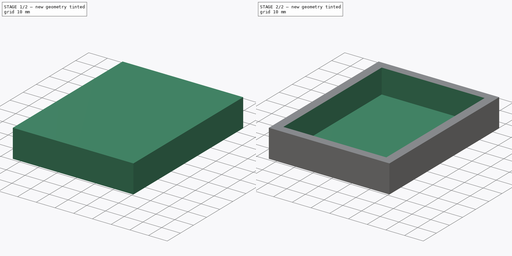
[diagram: build sequence overview — one tinted view per stage of 2, left to right]
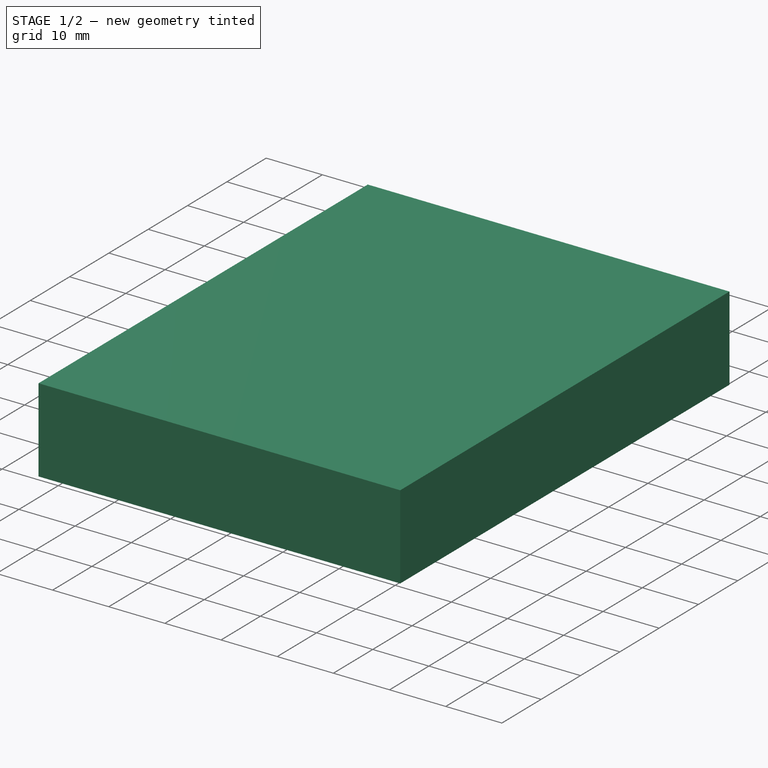
[diagram: stage 1 of 2 — iso view after this stage's code; geometry added in this stage tinted green]
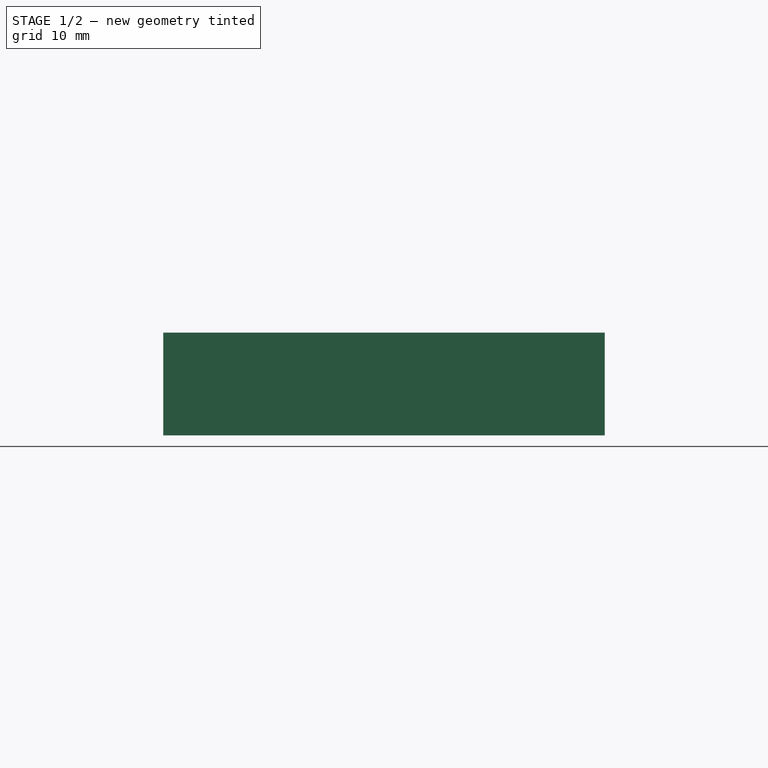
[diagram: stage 1 of 2 — front view after this stage's code; geometry added in this stage tinted green]
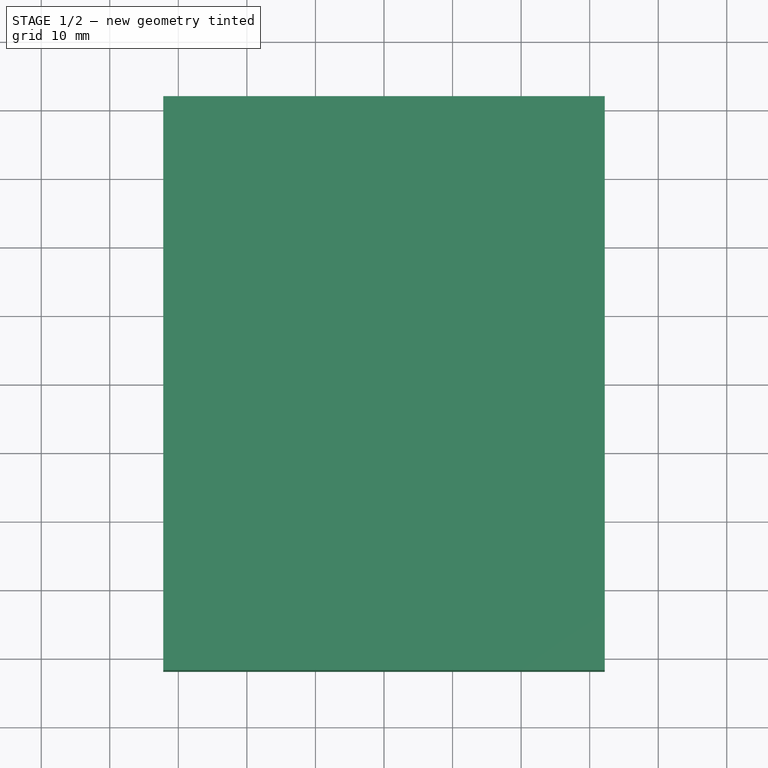
[diagram: stage 1 of 2 — top view after this stage's code; geometry added in this stage tinted green]
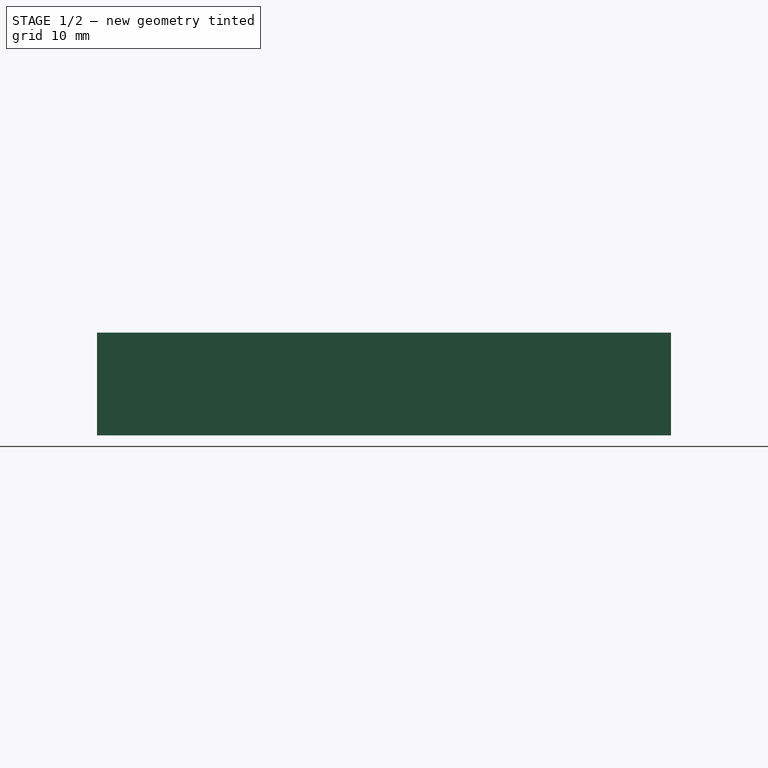
[diagram: stage 1 of 2 — right view after this stage's code; geometry added in this stage tinted green]
FCSTD DOCUMENT  (FreeCAD 1.0R39109 (Git))
Label: winding_dummy
License: All rights reserved
LicenseURL: https://en.wikipedia.org/wiki/All_rights_reserved
objects: Sketcher::SketchObject×3, PartDesign::Pad×1, PartDesign::Pocket×1, PartDesign::Body×1
note: 13 computed .brp shape members not serialized (recipe doc carries the construction recipe); baked Part::Feature solids carry a one-line shape summary decoded from their .brp

FEATURE [Sketcher::SketchObject] Sketch
  ArcFitTolerance = 1e-06
  AttachmentSupport = -> [XY_Plane]
  FullyConstrained = true
  MakeInternals = false
  MapMode = 5
  sketch-geometry (4):
    g0: LineSegment StartX=-32.2 StartY=41.865 StartZ=0 EndX=-32.2 EndY=-41.865 EndZ=0
    g1: LineSegment StartX=-32.2 StartY=-41.865 StartZ=0 EndX=32.2 EndY=-41.865 EndZ=0
    g2: LineSegment StartX=32.2 StartY=-41.865 StartZ=0 EndX=32.2 EndY=41.865 EndZ=0
    g3: LineSegment StartX=32.2 StartY=41.865 StartZ=0 EndX=-32.2 EndY=41.865 EndZ=0
  constraints (11):
    c: Coincident(g0,g1)
    c: Coincident(g1,g2)
    c: Coincident(g2,g3)
    c: Coincident(g3,g0)
    c: Vertical(g0)
    c: Vertical(g2)
    c: Horizontal(g1)
    c: Horizontal(g3)
    c: Distance(g0,g2) = 64.4
    c: Distance(g1,g3) = 83.73
    c: Symmetric(g0,g1,g-1)
FEATURE [PartDesign::Pad] Pad
  Direction = (0,0,1)
  Length = 15
  Length2 = 10
  Profile = -> Sketch
  ReferenceAxis = -> Sketch [N_Axis]
  Refine = true
  Suppressed = false
  Type = 0
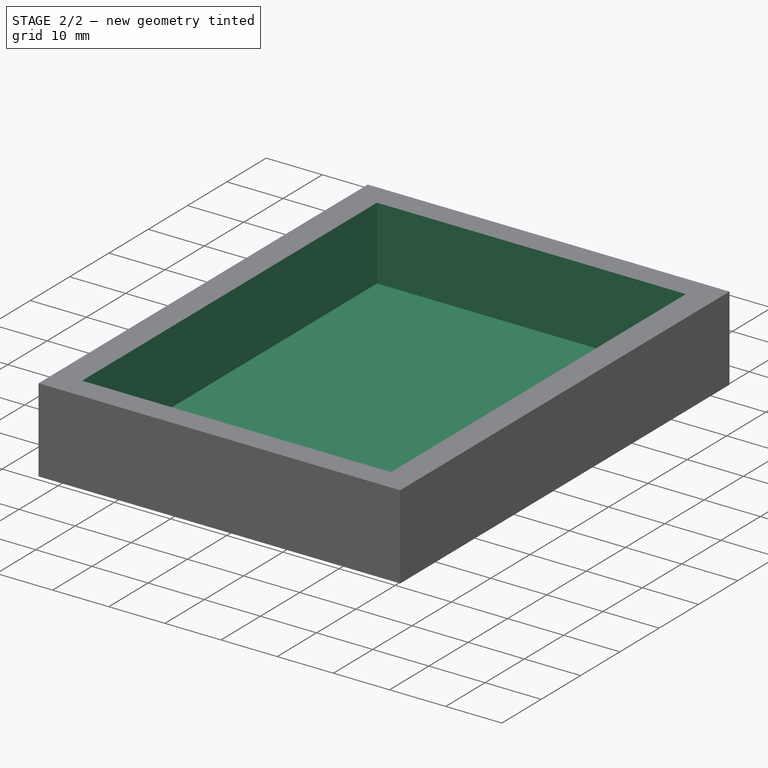
[diagram: stage 2 of 2 — iso view after this stage's code; geometry added in this stage tinted green]
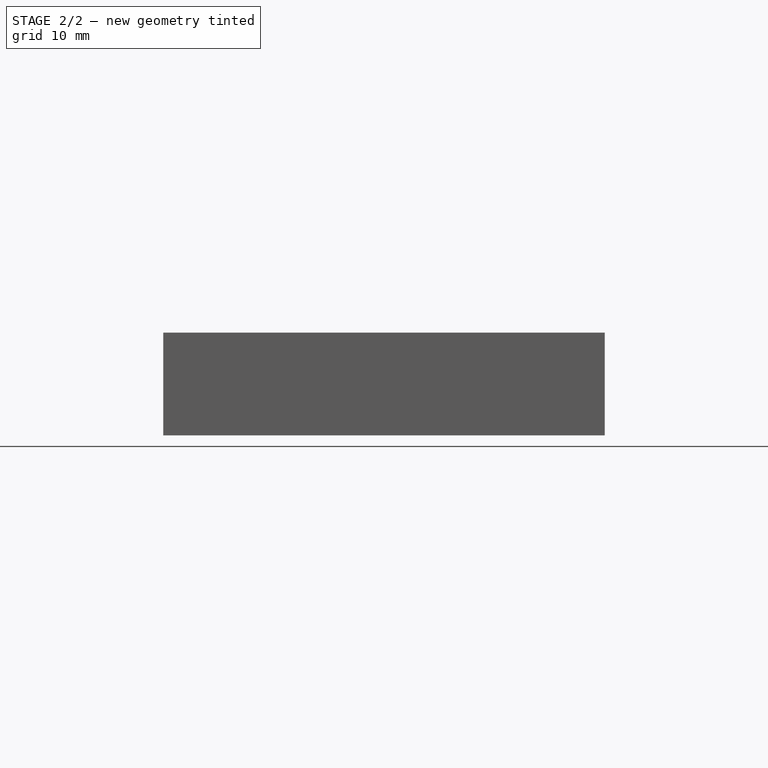
[diagram: stage 2 of 2 — front view after this stage's code; geometry added in this stage tinted green]
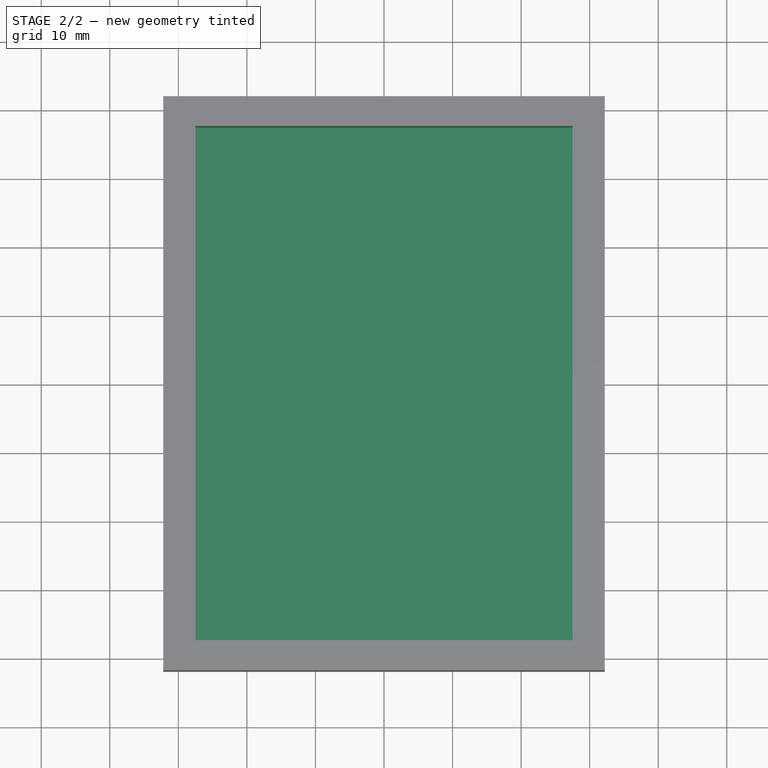
[diagram: stage 2 of 2 — top view after this stage's code; geometry added in this stage tinted green]
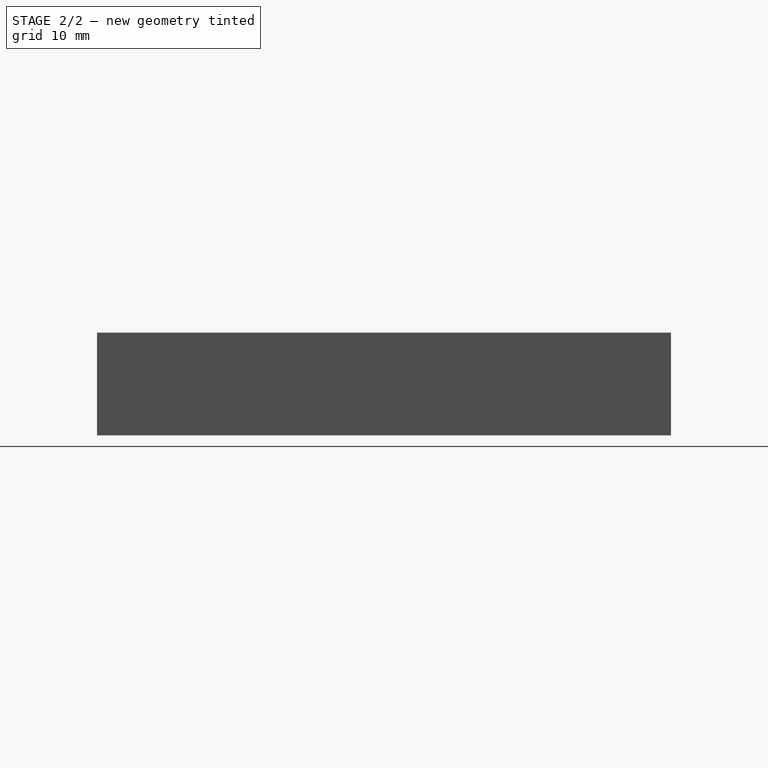
[diagram: stage 2 of 2 — right view after this stage's code; geometry added in this stage tinted green]
FEATURE [Sketcher::SketchObject] Sketch001
  ArcFitTolerance = 1e-06
  AttachmentSupport = -> [Pad]
  FullyConstrained = true
  MakeInternals = false
  MapMode = 5
  Placement = pos=(0,0,15) rot=(0,0,1;0rad)
  sketch-geometry (4):
    g0: LineSegment StartX=-27.5 StartY=37.5 StartZ=0 EndX=-27.5 EndY=-37.5 EndZ=0
    g1: LineSegment StartX=-27.5 StartY=-37.5 StartZ=0 EndX=27.5 EndY=-37.5 EndZ=0
    g2: LineSegment StartX=27.5 StartY=-37.5 StartZ=0 EndX=27.5 EndY=37.5 EndZ=0
    g3: LineSegment StartX=27.5 StartY=37.5 StartZ=0 EndX=-27.5 EndY=37.5 EndZ=0
  constraints (11):
    c: Coincident(g0,g1)
    c: Coincident(g1,g2)
    c: Coincident(g2,g3)
    c: Coincident(g3,g0)
    c: Vertical(g0)
    c: Vertical(g2)
    c: Horizontal(g1)
    c: Horizontal(g3)
    c: Symmetric(g0,g1,g-1)
    c: DistanceX(g3,g3) = 55
    c: DistanceY(g2,g2) = 75
FEATURE [PartDesign::Pocket] Pocket
  BaseFeature = -> Pad
  Direction = (0,0,-1)
  Length = 13
  Length2 = 5
  Profile = -> Sketch001
  ReferenceAxis = -> Sketch001 [N_Axis]
  Refine = true
  Suppressed = false
  Type = 0
FEATURE [Sketcher::SketchObject] Sketch002
  ArcFitTolerance = 1e-06
  AttachmentSupport = -> [Pocket]
  ExternalGeometry = -> [Pocket]
  FullyConstrained = true
  MakeInternals = false
  MapMode = 5
  Placement = pos=(0,0,0) rot=(1,0,0;3.14159rad)
  sketch-geometry (8):
    g0: LineSegment StartX=-32.4 StartY=42.065 StartZ=0 EndX=-32.4 EndY=-42.065 EndZ=0
    g1: LineSegment StartX=-32.4 StartY=-42.065 StartZ=0 EndX=32.4 EndY=-42.065 EndZ=0
    g2: LineSegment StartX=32.4 StartY=-42.065 StartZ=0 EndX=32.4 EndY=42.065 EndZ=0
    g3: LineSegment StartX=32.4 StartY=42.065 StartZ=0 EndX=-32.4 EndY=42.065 EndZ=0
    g4: LineSegment StartX=-34.4 StartY=44.065 StartZ=0 EndX=-34.4 EndY=-44.065 EndZ=0
    g5: LineSegment StartX=-34.4 StartY=-44.065 StartZ=0 EndX=34.4 EndY=-44.065 EndZ=0
    g6: LineSegment StartX=34.4 StartY=-44.065 StartZ=0 EndX=34.4 EndY=44.065 EndZ=0
    g7: LineSegment StartX=34.4 StartY=44.065 StartZ=0 EndX=-34.4 EndY=44.065 EndZ=0
  constraints (24):
    c: Coincident(g0,g1)
    c: Coincident(g1,g2)
    c: Coincident(g2,g3)
    c: Coincident(g3,g0)
    c: Vertical(g0)
    c: Vertical(g2)
    c: Horizontal(g1)
    c: Horizontal(g3)
    c: Distance(g-6,g1) = 0.2
    c: Distance(g0,g-3) = 0.2
    c: Distance(g2,g-5) = 0.2
    c: Distance(g3,g-4) = 0.2
    c: Coincident(g4,g5)
    c: Coincident(g5,g6)
    c: Coincident(g6,g7)
    c: Coincident(g7,g4)
    c: Vertical(g4)
    c: Vertical(g6)
    c: Horizontal(g5)
    c: Horizontal(g7)
    c: Distance(g6,g2) = 2
    c: Distance(g7,g3) = 2
    c: Distance(g4,g0) = 2
    c: Distance(g5,g1) = 2
FEATURE [PartDesign::Body] Body
  AllowCompound = false
  Group = -> [Sketch,Pad,Sketch001,Pocket,Sketch002]
  Origin = -> Origin
  Tip = -> Pocket
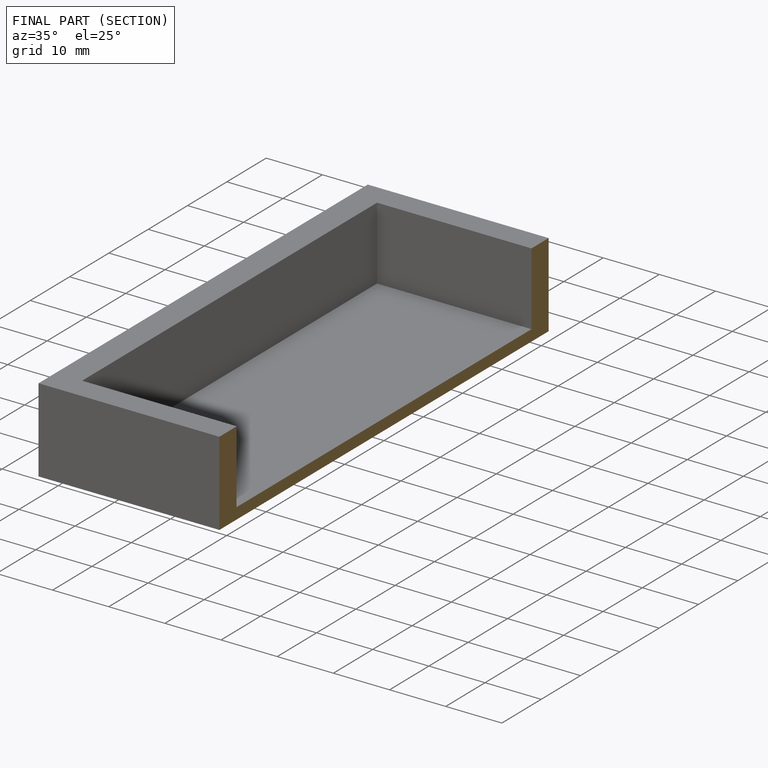
[diagram: finished part — half-section view (interior)]
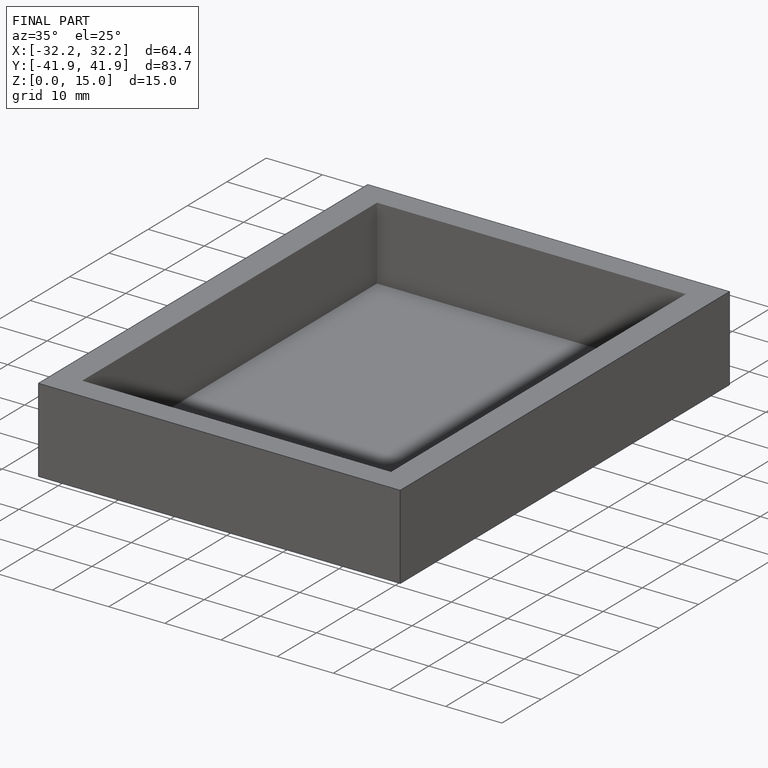
[diagram: finished part — iso view with bounding-box wireframe]
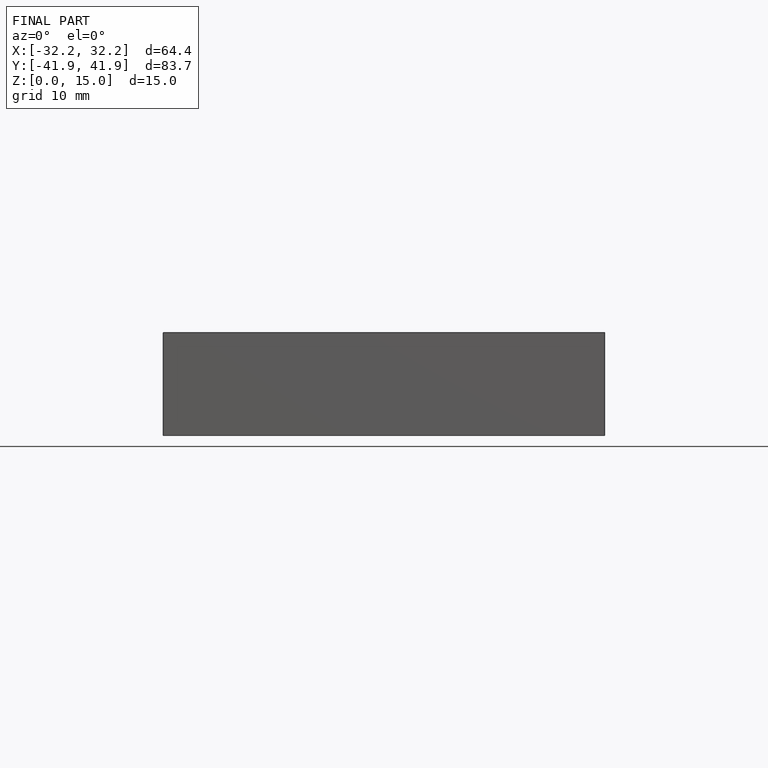
[diagram: finished part — front view with bounding-box wireframe]
